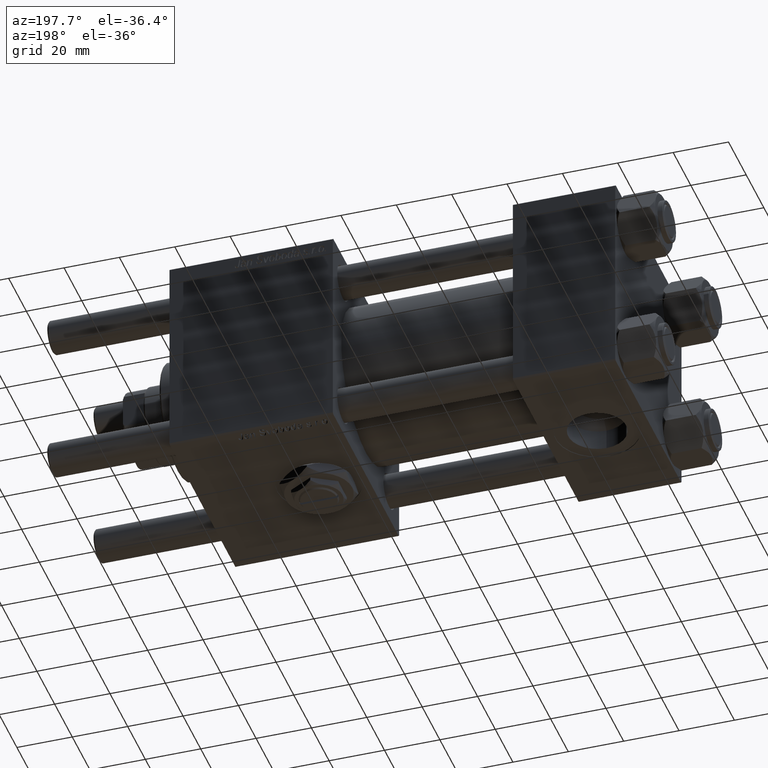
[diagram: clean part render]
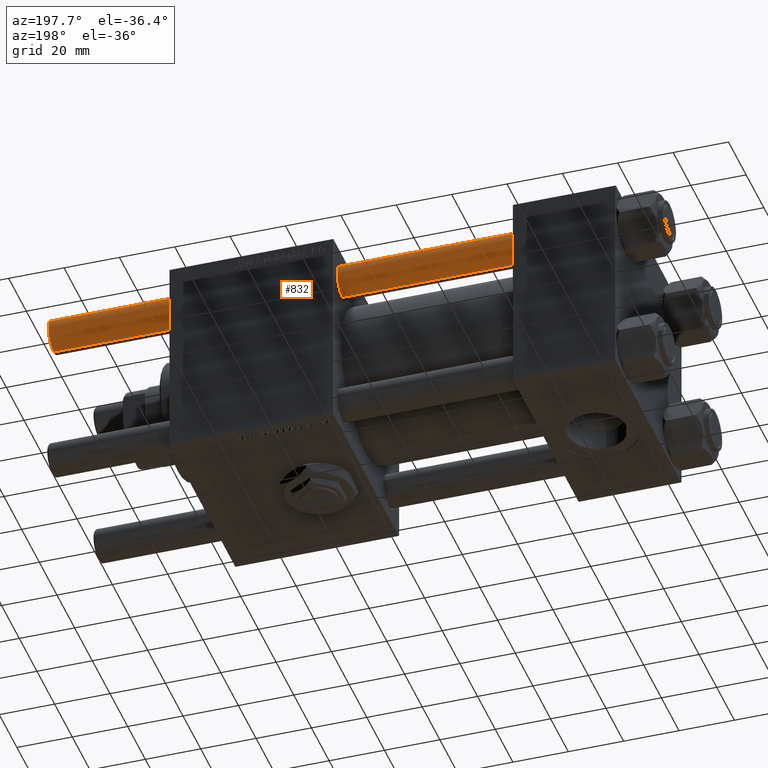
[diagram: same view with one face highlighted and labeled with its STEP entity id]
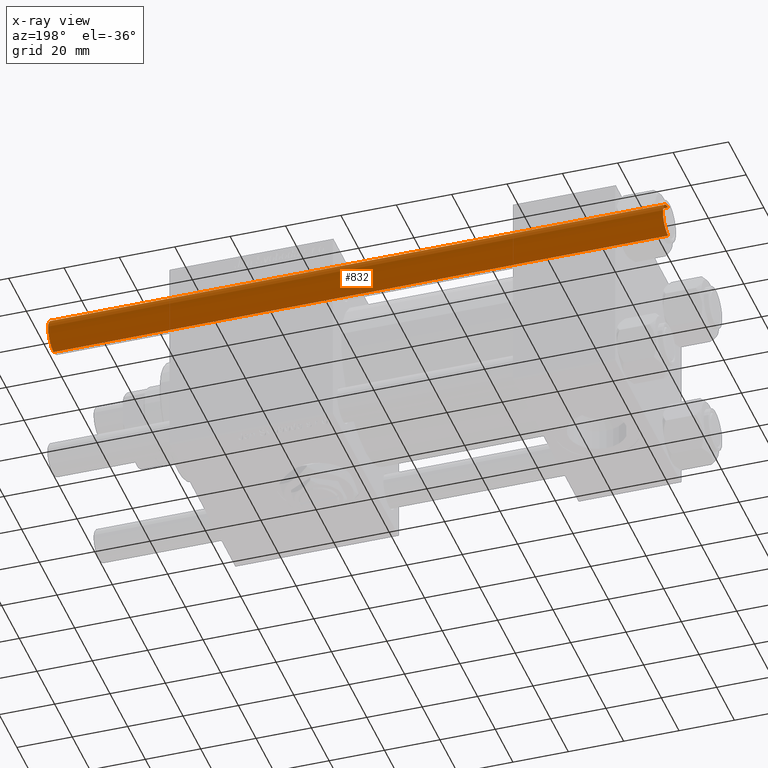
[diagram: x-ray of the same camera — body ghosted, the highlighted face saturated]
A machine part, auxiliary view. The second image highlights one B-rep face of the part: STEP entity #832.
The next image is the same camera in x-ray: the body ghosted, the highlighted face saturated — about 0% of this face is hidden behind the body in this view.
In plain terms, the highlighted cylindrical surface (edge-blend (fillet) strip) has radius 6 mm, axis along (1, -0, -0).
Its self-contained STEP definition (entity closure, byte-faithful):
#624 = CIRCLE ( 'NONE', #47102, 6.000000000000000888 ) ;
#832 = ADVANCED_FACE ( 'NONE', ( #48833 ), #49414, .T. ) ;
#1287 = VERTEX_POINT ( 'NONE', #52558 ) ;
#2127 = AXIS2_PLACEMENT_3D ( 'NONE', #53272, #40508, #12577 ) ;
#4209 = VERTEX_POINT ( 'NONE', #32451 ) ;
#8542 = EDGE_LOOP ( 'NONE', ( #32526, #25379, #33414, #46189 ) ) ;
#8678 = VERTEX_POINT ( 'NONE', #56115 ) ;
#9549 = EDGE_CURVE ( 'NONE', #8678, #1287, #45180, .T. ) ;
#9743 = DIRECTION ( 'NONE',  ( -0.000000000000000000, -0.000000000000000000, -1.000000000000000000 ) ) ;
#10042 = LINE ( 'NONE', #55485, #38432 ) ;
#11733 = VECTOR ( 'NONE', #36259, 1000.000000000000000 ) ;
#12577 = DIRECTION ( 'NONE',  ( -1.000000000000000000, 0.000000000000000000, 0.000000000000000000 ) ) ;
#12819 = AXIS2_PLACEMENT_3D ( 'NONE', #53879, #45286, #39631 ) ;
#22180 = DIRECTION ( 'NONE',  ( 0.000000000000000000, 0.000000000000000000, -1.000000000000000000 ) ) ;
#24858 = EDGE_CURVE ( 'NONE', #1287, #33698, #28023, .T. ) ;
#25379 = ORIENTED_EDGE ( 'NONE', *, *, #9549, .T. ) ;
#28023 = CIRCLE ( 'NONE', #12819, 6.000000000000000888 ) ;
#32451 = CARTESIAN_POINT ( 'NONE',  ( -6.000000000000000888, 0.000000000000000000, 222.5000000000000853 ) ) ;
#32526 = ORIENTED_EDGE ( 'NONE', *, *, #32844, .T. ) ;
#32844 = EDGE_CURVE ( 'NONE', #4209, #8678, #624, .T. ) ;
#33414 = ORIENTED_EDGE ( 'NONE', *, *, #24858, .T. ) ;
#33698 = VERTEX_POINT ( 'NONE', #53767 ) ;
#35862 = DIRECTION ( 'NONE',  ( 1.000000000000000000, 0.000000000000000000, 0.000000000000000000 ) ) ;
#36259 = DIRECTION ( 'NONE',  ( -0.000000000000000000, -0.000000000000000000, -1.000000000000000000 ) ) ;
#38432 = VECTOR ( 'NONE', #9743, 1000.000000000000000 ) ;
#39631 = DIRECTION ( 'NONE',  ( 1.000000000000000000, 0.000000000000000000, 0.000000000000000000 ) ) ;
#40508 = DIRECTION ( 'NONE',  ( -0.000000000000000000, -0.000000000000000000, -1.000000000000000000 ) ) ;
#45180 = LINE ( 'NONE', #49042, #11733 ) ;
#45286 = DIRECTION ( 'NONE',  ( -0.000000000000000000, -0.000000000000000000, 1.000000000000000000 ) ) ;
#46189 = ORIENTED_EDGE ( 'NONE', *, *, #56125, .F. ) ;
#47102 = AXIS2_PLACEMENT_3D ( 'NONE', #48636, #22180, #35862 ) ;
#48636 = CARTESIAN_POINT ( 'NONE',  ( 0.000000000000000000, 0.000000000000000000, 222.5000000000000853 ) ) ;
#48833 = FACE_OUTER_BOUND ( 'NONE', #8542, .T. ) ;
#49042 = CARTESIAN_POINT ( 'NONE',  ( 6.000000000000000888, 7.347880794884119736E-16, 223.0000000000000000 ) ) ;
#49414 = CYLINDRICAL_SURFACE ( 'NONE', #2127, 6.000000000000000888 ) ;
#52558 = CARTESIAN_POINT ( 'NONE',  ( 6.000000000000000888, 7.347880794884119736E-16, 0.5000000000001947331 ) ) ;
#53272 = CARTESIAN_POINT ( 'NONE',  ( 0.000000000000000000, 0.000000000000000000, 223.0000000000000000 ) ) ;
#53767 = CARTESIAN_POINT ( 'NONE',  ( -6.000000000000000888, 0.000000000000000000, 0.5000000000001947331 ) ) ;
#53879 = CARTESIAN_POINT ( 'NONE',  ( 0.000000000000000000, 0.000000000000000000, 0.5000000000001947331 ) ) ;
#55485 = CARTESIAN_POINT ( 'NONE',  ( -6.000000000000000888, 0.000000000000000000, 223.0000000000000000 ) ) ;
#56115 = CARTESIAN_POINT ( 'NONE',  ( 6.000000000000000888, 7.347880794884119736E-16, 222.5000000000000853 ) ) ;
#56125 = EDGE_CURVE ( 'NONE', #4209, #33698, #10042, .T. ) ;